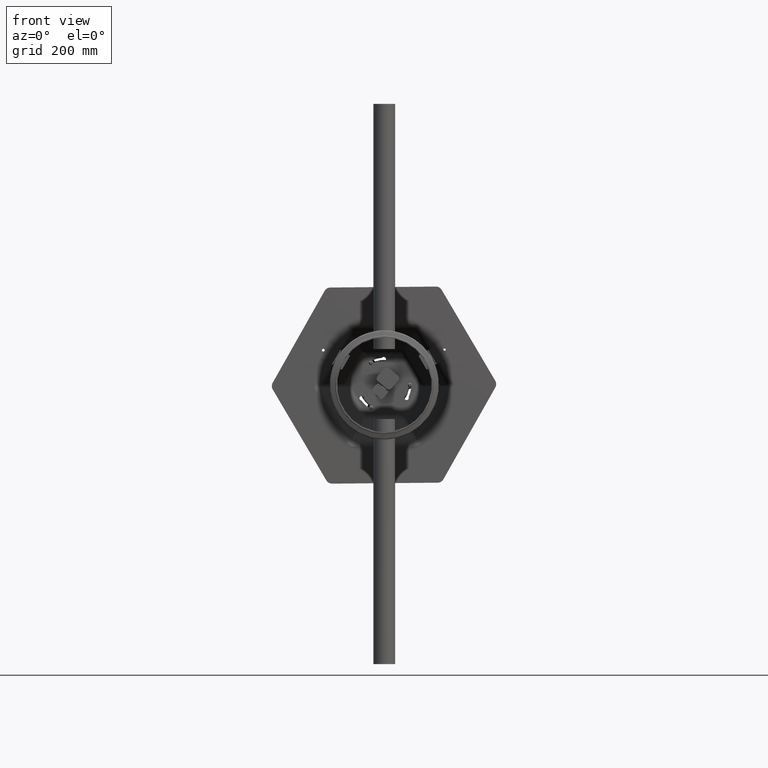
[diagram: clean part render]
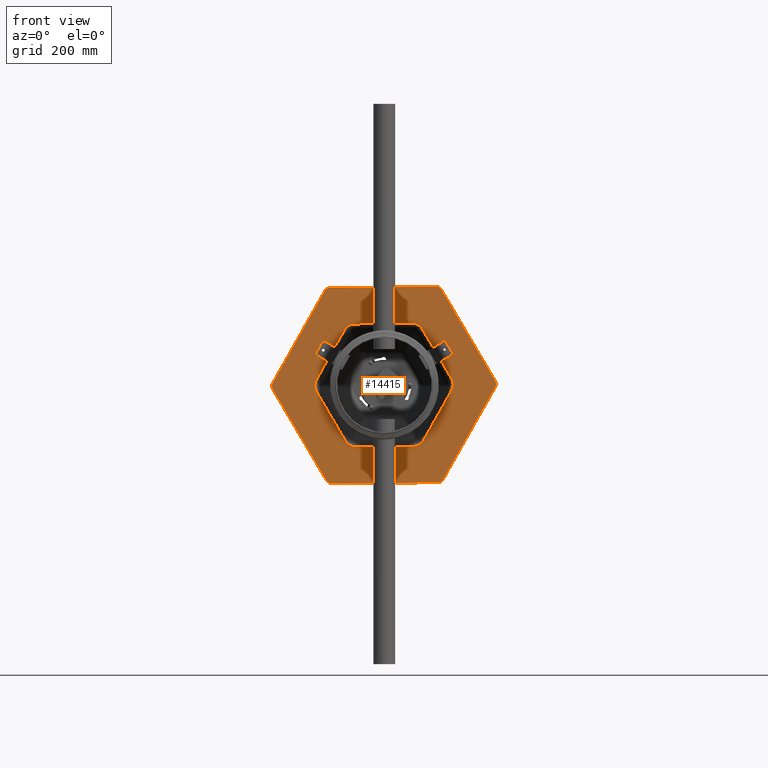
[diagram: same view with one face highlighted and labeled with its STEP entity id]
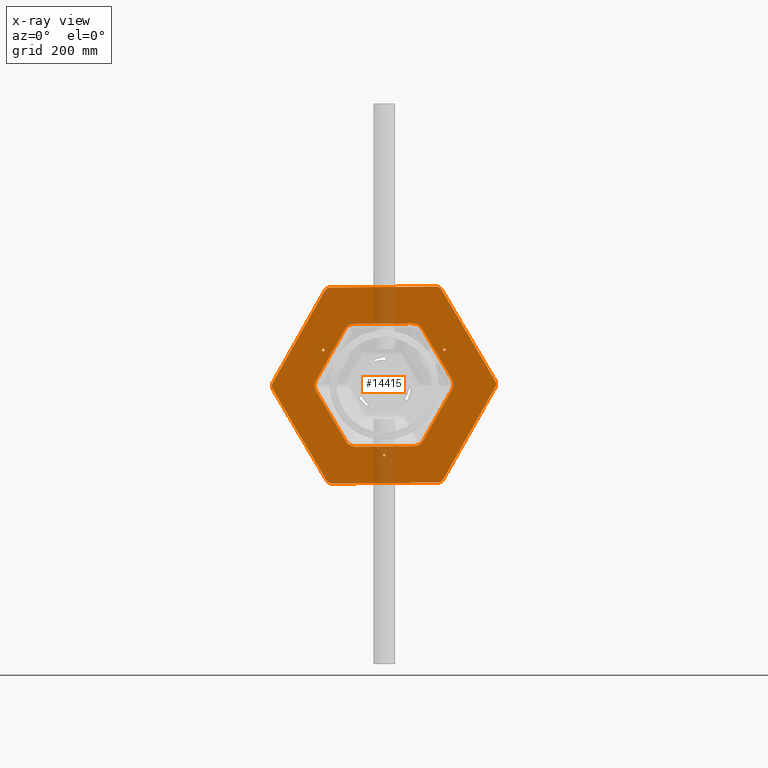
[diagram: x-ray of the same camera — body ghosted, the highlighted face saturated]
A machine part, front view. The second image highlights one B-rep face of the part: STEP entity #14415.
The next image is the same camera in x-ray: the body ghosted, the highlighted face saturated — about 8% of this face is hidden behind the body in this view.
In plain terms, the highlighted planar face has unit normal (-0, 1, 0).
Its self-contained STEP definition (entity closure, byte-faithful):
#186 = CARTESIAN_POINT ( 'NONE',  ( -10.57531631285923979, -124.1548265256772225, 2.220446049250313081E-13 ) ) ;
#203 = CARTESIAN_POINT ( 'NONE',  ( 108.9685932156030219, -67.34744161942877838, -6.240216072077553448E-29 ) ) ;
#506 = CARTESIAN_POINT ( 'NONE',  ( -108.9685932156029793, 67.34744161942867891, 6.605715013801087453E-29 ) ) ;
#890 = AXIS2_PLACEMENT_3D ( 'NONE', #34918, #13504, #38505 ) ;
#1071 = ORIENTED_EDGE ( 'NONE', *, *, #35603, .T. ) ;
#1286 = EDGE_CURVE ( 'NONE', #25062, #9273, #42304, .T. ) ;
#1314 = CARTESIAN_POINT ( 'NONE',  ( 5.999999999999950262, -204.3819952931275168, 0.0000000000000000000 ) ) ;
#1378 = CARTESIAN_POINT ( 'NONE',  ( 6.000000000000005329, 204.3819952931275168, 0.0000000000000000000 ) ) ;
#1386 = VERTEX_POINT ( 'NONE', #44862 ) ;
#1390 = ORIENTED_EDGE ( 'NONE', *, *, #26657, .T. ) ;
#1637 = CARTESIAN_POINT ( 'NONE',  ( 180.0000000000000000, -103.9230484541326973, 2.220446049250313081E-13 ) ) ;
#1640 = ORIENTED_EDGE ( 'NONE', *, *, #6826, .F. ) ;
#1879 = DIRECTION ( 'NONE',  ( 2.563797941968288368E-30, 3.944304526105059027E-31, -1.000000000000000000 ) ) ;
#1901 = LINE ( 'NONE', #39063, #10270 ) ;
#1973 = CARTESIAN_POINT ( 'NONE',  ( 102.2335756172567898, 71.23590584283078897, 0.0000000000000000000 ) ) ;
#1988 = AXIS2_PLACEMENT_3D ( 'NONE', #12129, #37157, #15721 ) ;
#2109 = EDGE_CURVE ( 'NONE', #45054, #25062, #11098, .T. ) ;
#2113 = DIRECTION ( 'NONE',  ( 4.440892098500626162E-16, -1.000000000000000000, 3.944304526105059027E-31 ) ) ;
#2136 = DIRECTION ( 'NONE',  ( 2.563797941968288368E-30, 3.944304526105059027E-31, -1.000000000000000000 ) ) ;
#2733 = VERTEX_POINT ( 'NONE', #41937 ) ;
#2790 = AXIS2_PLACEMENT_3D ( 'NONE', #38264, #16810, #41867 ) ;
#3108 = CIRCLE ( 'NONE', #19731, 12.00000000000001066 ) ;
#3399 = EDGE_CURVE ( 'NONE', #13277, #9923, #19245, .T. ) ;
#3506 = VERTEX_POINT ( 'NONE', #41347 ) ;
#3522 = CARTESIAN_POINT ( 'NONE',  ( -6.000000000000005329, 204.3819952931275168, 0.0000000000000000000 ) ) ;
#4045 = VECTOR ( 'NONE', #12402, 1000.000000000000000 ) ;
#4086 = CARTESIAN_POINT ( 'NONE',  ( 10.57531631285926821, 124.1548265256772225, 0.0000000000000000000 ) ) ;
#4103 = CARTESIAN_POINT ( 'NONE',  ( -112.8088919301161184, 52.91892068284648332, 0.0000000000000000000 ) ) ;
#4182 = ORIENTED_EDGE ( 'NONE', *, *, #41585, .T. ) ;
#4281 = LINE ( 'NONE', #4703, #40124 ) ;
#4584 = ORIENTED_EDGE ( 'NONE', *, *, #2109, .T. ) ;
#4703 = CARTESIAN_POINT ( 'NONE',  ( 112.8088919301159763, 1.110223024625156540E-13, 2.220446049250313081E-13 ) ) ;
#4885 = EDGE_CURVE ( 'NONE', #11067, #24044, #13093, .T. ) ;
#5073 = VERTEX_POINT ( 'NONE', #9171 ) ;
#5778 = EDGE_LOOP ( 'NONE', ( #41142, #7162 ) ) ;
#5872 = DIRECTION ( 'NONE',  ( 2.563797941968288368E-30, 3.944304526105059027E-31, -1.000000000000000000 ) ) ;
#6488 = CIRCLE ( 'NONE', #35121, 2.499999999999919176 ) ;
#6621 = CARTESIAN_POINT ( 'NONE',  ( -112.8088919301160757, -60.69584912965054713, 2.220446049250313586E-13 ) ) ;
#6816 = DIRECTION ( 'NONE',  ( 0.8660254037844387076, -0.4999999999999998335, -2.308034445353663446E-30 ) ) ;
#6826 = EDGE_CURVE ( 'NONE', #33471, #46403, #42288, .T. ) ;
#6858 = CARTESIAN_POINT ( 'NONE',  ( -112.8088919301161184, 52.91892068284648332, 0.0000000000000000000 ) ) ;
#6963 = CARTESIAN_POINT ( 'NONE',  ( 64.49258023428311049, -110.8974878807650271, 0.0000000000000000000 ) ) ;
#7162 = ORIENTED_EDGE ( 'NONE', *, *, #28654, .F. ) ;
#7355 = CARTESIAN_POINT ( 'NONE',  ( 10.57531631285918472, -124.1548265256772225, 0.0000000000000000000 ) ) ;
#8018 = CARTESIAN_POINT ( 'NONE',  ( 64.49258023428311049, -110.8974878807650271, 0.0000000000000000000 ) ) ;
#8452 = EDGE_CURVE ( 'NONE', #17626, #32310, #1901, .T. ) ;
#8534 = DIRECTION ( 'NONE',  ( 0.8660254037844385966, -0.4999999999999999445, -2.391234618951192385E-30 ) ) ;
#8638 = ORIENTED_EDGE ( 'NONE', *, *, #45443, .T. ) ;
#8715 = LINE ( 'NONE', #46287, #26587 ) ;
#8801 = ORIENTED_EDGE ( 'NONE', *, *, #1286, .T. ) ;
#8850 = CIRCLE ( 'NONE', #27512, 2.499999999999925837 ) ;
#9171 = CARTESIAN_POINT ( 'NONE',  ( 66.99258023428305364, -110.8974878807650271, 6.355568816477867105E-30 ) ) ;
#9186 = ORIENTED_EDGE ( 'NONE', *, *, #20417, .F. ) ;
#9199 = EDGE_CURVE ( 'NONE', #43872, #14733, #23094, .T. ) ;
#9273 = VERTEX_POINT ( 'NONE', #41520 ) ;
#9292 = CARTESIAN_POINT ( 'NONE',  ( -112.8088919301161184, -1.110223024625156540E-13, 0.0000000000000000000 ) ) ;
#9422 = CARTESIAN_POINT ( 'NONE',  ( 66.19974159824982962, 111.8859771665176055, 6.355568816478028254E-30 ) ) ;
#9923 = VERTEX_POINT ( 'NONE', #31487 ) ;
#10134 = CARTESIAN_POINT ( 'NONE',  ( -180.0000000000000284, 96.99484522385698426, 0.0000000000000000000 ) ) ;
#10208 = VERTEX_POINT ( 'NONE', #37102 ) ;
#10230 = CARTESIAN_POINT ( 'NONE',  ( -108.9685932156029367, -67.34744161942877838, 2.220446049250313586E-13 ) ) ;
#10270 = VECTOR ( 'NONE', #13754, 999.9999999999998863 ) ;
#10497 = CARTESIAN_POINT ( 'NONE',  ( 61.99258023428318864, -110.8974878807650271, 7.888609052209892445E-30 ) ) ;
#10544 = DIRECTION ( 'NONE',  ( -1.000000000000000000, 0.0000000000000000000, 3.155443620884050725E-30 ) ) ;
#11067 = VERTEX_POINT ( 'NONE', #21558 ) ;
#11069 = DIRECTION ( 'NONE',  ( 2.563797941968288368E-30, 3.944304526105059027E-31, -1.000000000000000000 ) ) ;
#11093 = CARTESIAN_POINT ( 'NONE',  ( 3.840298714513144418, 128.0432907490792047, 2.220446049250313081E-13 ) ) ;
#11098 =( BOUNDED_CURVE ( )  B_SPLINE_CURVE ( 3, ( #25512, #506, #21966, #4103 ),
 .UNSPECIFIED., .F., .F. ) 
 B_SPLINE_CURVE_WITH_KNOTS ( ( 4, 4 ),
 ( 2.640144173555560414, 3.643041133624027594 ),
 .UNSPECIFIED. ) 
 CURVE ( )  GEOMETRIC_REPRESENTATION_ITEM ( )  RATIONAL_B_SPLINE_CURVE ( ( 1.000000000000000000, 0.9179248021248419542, 0.9179248021248419542, 1.000000000000000000 ) ) 
 REPRESENTATION_ITEM ( '' )  );
#11577 = VECTOR ( 'NONE', #8534, 1000.000000000000114 ) ;
#11581 = DIRECTION ( 'NONE',  ( -1.000000000000000000, 0.0000000000000000000, 3.155443620884050725E-30 ) ) ;
#11810 = FACE_OUTER_BOUND ( 'NONE', #22897, .T. ) ;
#11889 = DIRECTION ( 'NONE',  ( -9.436895709313830594E-16, 1.000000000000000000, -3.944304526105059027E-31 ) ) ;
#12129 = CARTESIAN_POINT ( 'NONE',  ( -5.551115123125782702E-14, -193.9896904477143096, 2.220446049250313081E-13 ) ) ;
#12170 = CIRCLE ( 'NONE', #21863, 2.499999999999919176 ) ;
#12386 = ORIENTED_EDGE ( 'NONE', *, *, #9199, .F. ) ;
#12402 = DIRECTION ( 'NONE',  ( 0.0000000000000000000, -1.000000000000000000, 3.944304526105059903E-31 ) ) ;
#12628 = VECTOR ( 'NONE', #2113, 1000.000000000000000 ) ;
#12713 = CIRCLE ( 'NONE', #18640, 12.00000000000001066 ) ;
#13093 =( BOUNDED_CURVE ( )  B_SPLINE_CURVE ( 3, ( #4086, #11093, #18304, #29064 ),
 .UNSPECIFIED., .F., .F. ) 
 B_SPLINE_CURVE_WITH_KNOTS ( ( 4, 4 ),
 ( 2.640144173555560414, 3.643041133624027150 ),
 .UNSPECIFIED. ) 
 CURVE ( )  GEOMETRIC_REPRESENTATION_ITEM ( )  RATIONAL_B_SPLINE_CURVE ( ( 1.000000000000000000, 0.9179248021248420653, 0.9179248021248420653, 1.000000000000000000 ) ) 
 REPRESENTATION_ITEM ( '' )  );
#13229 = AXIS2_PLACEMENT_3D ( 'NONE', #36483, #15061, #40109 ) ;
#13277 = VERTEX_POINT ( 'NONE', #1314 ) ;
#13372 = VERTEX_POINT ( 'NONE', #28136 ) ;
#13500 = AXIS2_PLACEMENT_3D ( 'NONE', #32528, #11069, #36106 ) ;
#13504 = DIRECTION ( 'NONE',  ( 2.563797941968288368E-30, 3.944304526105059027E-31, -1.000000000000000000 ) ) ;
#13754 = DIRECTION ( 'NONE',  ( -0.8660254037844385966, -0.5000000000000002220, 2.169367489357782465E-30 ) ) ;
#14274 = VECTOR ( 'NONE', #34848, 1000.000000000000114 ) ;
#14415 = ADVANCED_FACE ( 'NONE', ( #30851, #39236, #21352, #41525, #11810 ), #20281, .F. ) ;
#14733 = VERTEX_POINT ( 'NONE', #27887 ) ;
#14940 = CIRCLE ( 'NONE', #33323, 2.499999999999925837 ) ;
#15061 = DIRECTION ( 'NONE',  ( 2.563797941968288368E-30, 3.944304526105059027E-31, -1.000000000000000000 ) ) ;
#15380 = LINE ( 'NONE', #38443, #14274 ) ;
#15509 = DIRECTION ( 'NONE',  ( 0.8660254037844385966, 0.5000000000000000000, -1.774937036747276562E-30 ) ) ;
#15514 = DIRECTION ( 'NONE',  ( -0.8660254037844388186, -0.4999999999999996669, 2.761013168273541319E-30 ) ) ;
#15721 = DIRECTION ( 'NONE',  ( 1.000000000000000000, 4.625929269271486900E-15, -4.108650548026104321E-30 ) ) ;
#16180 = CARTESIAN_POINT ( 'NONE',  ( 112.8088919301160473, 60.69584912965056134, 2.220446049250312324E-13 ) ) ;
#16421 = VERTEX_POINT ( 'NONE', #21411 ) ;
#16591 = EDGE_CURVE ( 'NONE', #1386, #35790, #21113, .T. ) ;
#16594 = CARTESIAN_POINT ( 'NONE',  ( -174.0000000000000568, 107.3871500692702483, 2.220446049250313081E-13 ) ) ;
#16630 = DIRECTION ( 'NONE',  ( 2.563797941968288368E-30, 3.944304526105059027E-31, -1.000000000000000000 ) ) ;
#16810 = DIRECTION ( 'NONE',  ( 3.155443620884047922E-30, -3.944304526105059027E-31, 1.000000000000000000 ) ) ;
#16909 = AXIS2_PLACEMENT_3D ( 'NONE', #38081, #16630, #41710 ) ;
#17306 = CARTESIAN_POINT ( 'NONE',  ( -6.000000000000116351, -204.3819952931275168, 2.220446049250313081E-13 ) ) ;
#17521 = DIRECTION ( 'NONE',  ( 2.563797941968288368E-30, 3.944304526105059027E-31, -1.000000000000000000 ) ) ;
#17626 = VERTEX_POINT ( 'NONE', #3522 ) ;
#17873 = ORIENTED_EDGE ( 'NONE', *, *, #3399, .F. ) ;
#18091 = EDGE_CURVE ( 'NONE', #25163, #9923, #3108, .T. ) ;
#18107 = VECTOR ( 'NONE', #15509, 1000.000000000000227 ) ;
#18166 = CARTESIAN_POINT ( 'NONE',  ( 112.8088919301161468, -60.69584912965054713, -4.993282014363931459E-29 ) ) ;
#18191 = EDGE_CURVE ( 'NONE', #10208, #38001, #42984, .T. ) ;
#18304 = CARTESIAN_POINT ( 'NONE',  ( -3.840298714513111111, 128.0432907490792047, 2.220446049250313081E-13 ) ) ;
#18640 = AXIS2_PLACEMENT_3D ( 'NONE', #23317, #1879, #26850 ) ;
#19245 = LINE ( 'NONE', #36941, #18107 ) ;
#19731 = AXIS2_PLACEMENT_3D ( 'NONE', #38954, #17521, #42590 ) ;
#19777 =( BOUNDED_CURVE ( )  B_SPLINE_CURVE ( 3, ( #35985, #203, #18166, #43213 ),
 .UNSPECIFIED., .F., .F. ) 
 B_SPLINE_CURVE_WITH_KNOTS ( ( 4, 4 ),
 ( 2.640144173555563079, 3.643041133624032035 ),
 .UNSPECIFIED. ) 
 CURVE ( )  GEOMETRIC_REPRESENTATION_ITEM ( )  RATIONAL_B_SPLINE_CURVE ( ( 1.000000000000000000, 0.9179248021248416212, 0.9179248021248416212, 1.000000000000000000 ) ) 
 REPRESENTATION_ITEM ( '' )  );
#19839 = VERTEX_POINT ( 'NONE', #10497 ) ;
#20015 = EDGE_CURVE ( 'NONE', #19839, #5073, #14940, .T. ) ;
#20281 = PLANE ( 'NONE',  #2790 ) ;
#20284 = LINE ( 'NONE', #36946, #38204 ) ;
#20417 = EDGE_CURVE ( 'NONE', #2733, #42828, #8715, .T. ) ;
#20468 = EDGE_LOOP ( 'NONE', ( #8638, #33386, #30137, #41505, #4182, #39759, #37235, #30495, #40861, #4584, #8801, #34668 ) ) ;
#20958 = DIRECTION ( 'NONE',  ( 2.563797941968288368E-30, 3.944304526105059027E-31, -1.000000000000000000 ) ) ;
#20974 = VECTOR ( 'NONE', #26627, 1000.000000000000000 ) ;
#21018 = ORIENTED_EDGE ( 'NONE', *, *, #18091, .T. ) ;
#21044 = EDGE_CURVE ( 'NONE', #25163, #42662, #22135, .T. ) ;
#21113 = LINE ( 'NONE', #29947, #11577 ) ;
#21265 = VERTEX_POINT ( 'NONE', #45725 ) ;
#21352 = FACE_BOUND ( 'NONE', #27385, .T. ) ;
#21398 = AXIS2_PLACEMENT_3D ( 'NONE', #42414, #20958, #45992 ) ;
#21411 = CARTESIAN_POINT ( 'NONE',  ( 112.8088919301160615, -52.91892068284654016, 2.220446049250313081E-13 ) ) ;
#21466 = CARTESIAN_POINT ( 'NONE',  ( 61.19974159824980120, 111.8859771665176055, 7.888609052210181113E-30 ) ) ;
#21558 = CARTESIAN_POINT ( 'NONE',  ( 10.57531631285926821, 124.1548265256772225, 0.0000000000000000000 ) ) ;
#21587 = ORIENTED_EDGE ( 'NONE', *, *, #22904, .F. ) ;
#21629 = CARTESIAN_POINT ( 'NONE',  ( -3.840298714513142642, -128.0432907490792331, 2.220446049250313081E-13 ) ) ;
#21704 = CARTESIAN_POINT ( 'NONE',  ( -131.0606159927931458, -0.9905632959438248619, 7.888609052209827985E-30 ) ) ;
#21863 = AXIS2_PLACEMENT_3D ( 'NONE', #23581, #2136, #27121 ) ;
#21885 = EDGE_CURVE ( 'NONE', #43872, #32310, #41070, .T. ) ;
#21966 = CARTESIAN_POINT ( 'NONE',  ( -112.8088919301161468, 60.69584912965049739, 5.358780956087478356E-29 ) ) ;
#22135 = LINE ( 'NONE', #1637, #20974 ) ;
#22240 = ORIENTED_EDGE ( 'NONE', *, *, #16591, .F. ) ;
#22897 = EDGE_LOOP ( 'NONE', ( #27391, #34626, #9186, #1390, #43596, #21018, #17873, #33313, #22240, #1071, #12386, #23685 ) ) ;
#22904 = EDGE_CURVE ( 'NONE', #46403, #33471, #44875, .T. ) ;
#22911 = CARTESIAN_POINT ( 'NONE',  ( -102.2335756172567898, -71.23590584283078897, 2.220446049250313081E-13 ) ) ;
#23094 = LINE ( 'NONE', #33829, #4045 ) ;
#23317 = CARTESIAN_POINT ( 'NONE',  ( -167.9999999999999716, -96.99484522385715479, 0.0000000000000000000 ) ) ;
#23414 = CARTESIAN_POINT ( 'NONE',  ( 108.9685932156029367, 67.34744161942877838, 2.220446049250312324E-13 ) ) ;
#23581 = CARTESIAN_POINT ( 'NONE',  ( -128.5606159927932310, -0.9905632959438248619, 0.0000000000000000000 ) ) ;
#23685 = ORIENTED_EDGE ( 'NONE', *, *, #21885, .T. ) ;
#23973 = CIRCLE ( 'NONE', #13229, 11.99999999999999645 ) ;
#24044 = VERTEX_POINT ( 'NONE', #30947 ) ;
#24437 = EDGE_CURVE ( 'NONE', #13277, #35790, #40836, .T. ) ;
#24678 = CARTESIAN_POINT ( 'NONE',  ( 180.0000000000001137, 96.99484522385698426, 0.0000000000000000000 ) ) ;
#25062 = VERTEX_POINT ( 'NONE', #6858 ) ;
#25163 = VERTEX_POINT ( 'NONE', #25457 ) ;
#25416 = DIRECTION ( 'NONE',  ( 0.8660254037844387076, 0.4999999999999998890, -2.366582715663035416E-30 ) ) ;
#25457 = CARTESIAN_POINT ( 'NONE',  ( 180.0000000000000000, -96.99484522385726848, 2.220446049250313081E-13 ) ) ;
#25512 = CARTESIAN_POINT ( 'NONE',  ( -102.2335756172568750, 71.23590584283067528, 2.220446049250313081E-13 ) ) ;
#25620 = EDGE_CURVE ( 'NONE', #5073, #19839, #8850, .T. ) ;
#26587 = VECTOR ( 'NONE', #38929, 1000.000000000000227 ) ;
#26627 = DIRECTION ( 'NONE',  ( 0.0000000000000000000, 1.000000000000000000, -3.944304526105059903E-31 ) ) ;
#26657 = EDGE_CURVE ( 'NONE', #2733, #42662, #40286, .T. ) ;
#26850 = DIRECTION ( 'NONE',  ( 1.000000000000000000, -2.312964634635740689E-15, -3.155443620884045470E-30 ) ) ;
#27121 = DIRECTION ( 'NONE',  ( -1.000000000000000000, 0.0000000000000000000, 3.155443620884033209E-30 ) ) ;
#27250 = CARTESIAN_POINT ( 'NONE',  ( -128.5606159927932310, -0.9905632959438248619, 0.0000000000000000000 ) ) ;
#27262 = CARTESIAN_POINT ( 'NONE',  ( 102.2335756172569035, -71.23590584283078897, 2.220446049250313081E-13 ) ) ;
#27379 = LINE ( 'NONE', #39662, #45329 ) ;
#27385 = EDGE_LOOP ( 'NONE', ( #21587, #1640 ) ) ;
#27391 = ORIENTED_EDGE ( 'NONE', *, *, #8452, .F. ) ;
#27488 = EDGE_CURVE ( 'NONE', #17626, #42828, #23973, .T. ) ;
#27512 = AXIS2_PLACEMENT_3D ( 'NONE', #6963, #32003, #10544 ) ;
#27887 = CARTESIAN_POINT ( 'NONE',  ( -180.0000000000000284, -96.99484522385715479, 0.0000000000000000000 ) ) ;
#28136 = CARTESIAN_POINT ( 'NONE',  ( -126.0606159927933021, -0.9905632959439356622, 6.355568816477990419E-30 ) ) ;
#28209 = CARTESIAN_POINT ( 'NONE',  ( -56.40444596505797392, -97.69536618425401286, 0.0000000000000000000 ) ) ;
#28654 = EDGE_CURVE ( 'NONE', #13372, #34717, #6488, .T. ) ;
#28753 = CARTESIAN_POINT ( 'NONE',  ( 3.840298714513089351, -128.0432907490792331, 2.220446049250314091E-13 ) ) ;
#29064 = CARTESIAN_POINT ( 'NONE',  ( -10.57531631285918472, 124.1548265256771089, 2.220446049250313081E-13 ) ) ;
#29947 = CARTESIAN_POINT ( 'NONE',  ( -180.0000000000001137, -103.9230484541326973, 0.0000000000000000000 ) ) ;
#30098 = EDGE_CURVE ( 'NONE', #9273, #43310, #33801, .T. ) ;
#30137 = ORIENTED_EDGE ( 'NONE', *, *, #45588, .T. ) ;
#30495 = ORIENTED_EDGE ( 'NONE', *, *, #4885, .T. ) ;
#30851 = FACE_BOUND ( 'NONE', #38221, .T. ) ;
#30902 = DIRECTION ( 'NONE',  ( -1.000000000000000000, 0.0000000000000000000, 3.155443620884033209E-30 ) ) ;
#30947 = CARTESIAN_POINT ( 'NONE',  ( -10.57531631285918472, 124.1548265256771089, 2.220446049250313081E-13 ) ) ;
#31487 = CARTESIAN_POINT ( 'NONE',  ( 174.0000000000000853, -107.3871500692703478, 0.0000000000000000000 ) ) ;
#32003 = DIRECTION ( 'NONE',  ( 2.563797941968288368E-30, 3.944304526105059027E-31, -1.000000000000000000 ) ) ;
#32310 = VERTEX_POINT ( 'NONE', #16594 ) ;
#32528 = CARTESIAN_POINT ( 'NONE',  ( 167.9999999999999716, 96.99484522385698426, 4.440892098500626162E-13 ) ) ;
#32691 = CARTESIAN_POINT ( 'NONE',  ( -102.2335756172568750, 71.23590584283067528, 2.220446049250313081E-13 ) ) ;
#33043 = DIRECTION ( 'NONE',  ( 2.563797941968288368E-30, 3.944304526105059027E-31, -1.000000000000000000 ) ) ;
#33241 =( BOUNDED_CURVE ( )  B_SPLINE_CURVE ( 3, ( #41265, #16180, #23414, #1973 ),
 .UNSPECIFIED., .F., .F. ) 
 B_SPLINE_CURVE_WITH_KNOTS ( ( 4, 4 ),
 ( 2.640144173555554197, 3.643041133624022709 ),
 .UNSPECIFIED. ) 
 CURVE ( )  GEOMETRIC_REPRESENTATION_ITEM ( )  RATIONAL_B_SPLINE_CURVE ( ( 1.000000000000000000, 0.9179248021248418432, 0.9179248021248418432, 1.000000000000000000 ) ) 
 REPRESENTATION_ITEM ( '' )  );
#33313 = ORIENTED_EDGE ( 'NONE', *, *, #24437, .T. ) ;
#33323 = AXIS2_PLACEMENT_3D ( 'NONE', #8018, #33043, #11581 ) ;
#33386 = ORIENTED_EDGE ( 'NONE', *, *, #18191, .T. ) ;
#33471 = VERTEX_POINT ( 'NONE', #9422 ) ;
#33801 =( BOUNDED_CURVE ( )  B_SPLINE_CURVE ( 3, ( #42324, #6621, #10230, #35247 ),
 .UNSPECIFIED., .F., .F. ) 
 B_SPLINE_CURVE_WITH_KNOTS ( ( 4, 4 ),
 ( 2.640144173555555085, 3.643041133624024042 ),
 .UNSPECIFIED. ) 
 CURVE ( )  GEOMETRIC_REPRESENTATION_ITEM ( )  RATIONAL_B_SPLINE_CURVE ( ( 1.000000000000000000, 0.9179248021248416212, 0.9179248021248416212, 1.000000000000000000 ) ) 
 REPRESENTATION_ITEM ( '' )  );
#33829 = CARTESIAN_POINT ( 'NONE',  ( -180.0000000000000284, 103.9230484541324699, 0.0000000000000000000 ) ) ;
#34626 = ORIENTED_EDGE ( 'NONE', *, *, #27488, .T. ) ;
#34668 = ORIENTED_EDGE ( 'NONE', *, *, #30098, .T. ) ;
#34717 = VERTEX_POINT ( 'NONE', #21704 ) ;
#34848 = DIRECTION ( 'NONE',  ( -0.8660254037844387076, 0.4999999999999997224, 1.725633230170962974E-30 ) ) ;
#34918 = CARTESIAN_POINT ( 'NONE',  ( 63.69974159824981541, 111.8859771665176055, 0.0000000000000000000 ) ) ;
#35121 = AXIS2_PLACEMENT_3D ( 'NONE', #27250, #5872, #30902 ) ;
#35247 = CARTESIAN_POINT ( 'NONE',  ( -102.2335756172567898, -71.23590584283078897, 2.220446049250313081E-13 ) ) ;
#35603 = EDGE_CURVE ( 'NONE', #1386, #14733, #12713, .T. ) ;
#35790 = VERTEX_POINT ( 'NONE', #17306 ) ;
#35985 = CARTESIAN_POINT ( 'NONE',  ( 102.2335756172569035, -71.23590584283078897, 2.220446049250313081E-13 ) ) ;
#36106 = DIRECTION ( 'NONE',  ( 1.000000000000000000, 3.469446951953611033E-15, -4.108650548026099416E-30 ) ) ;
#36189 = EDGE_CURVE ( 'NONE', #3506, #21265, #33241, .T. ) ;
#36424 = VECTOR ( 'NONE', #6816, 1000.000000000000000 ) ;
#36483 = CARTESIAN_POINT ( 'NONE',  ( 0.0000000000000000000, 193.9896904477141959, 0.0000000000000000000 ) ) ;
#36941 = CARTESIAN_POINT ( 'NONE',  ( -5.551115123125782702E-14, -207.8460969082652809, 2.220446049250313081E-13 ) ) ;
#36946 = CARTESIAN_POINT ( 'NONE',  ( -56.40444596505808761, 97.69536618425395602, 0.0000000000000000000 ) ) ;
#37102 = CARTESIAN_POINT ( 'NONE',  ( -10.57531631285923979, -124.1548265256772225, 2.220446049250313081E-13 ) ) ;
#37157 = DIRECTION ( 'NONE',  ( 2.563797941968288368E-30, 3.944304526105059027E-31, -1.000000000000000000 ) ) ;
#37235 = ORIENTED_EDGE ( 'NONE', *, *, #42598, .T. ) ;
#38001 = VERTEX_POINT ( 'NONE', #44560 ) ;
#38081 = CARTESIAN_POINT ( 'NONE',  ( 63.69974159824981541, 111.8859771665176055, 0.0000000000000000000 ) ) ;
#38204 = VECTOR ( 'NONE', #15514, 1000.000000000000000 ) ;
#38221 = EDGE_LOOP ( 'NONE', ( #45800, #40556 ) ) ;
#38264 = CARTESIAN_POINT ( 'NONE',  ( 0.0000000000000000000, 0.0000000000000000000, 0.0000000000000000000 ) ) ;
#38443 = CARTESIAN_POINT ( 'NONE',  ( 56.40444596505805919, 97.69536618425395602, 0.0000000000000000000 ) ) ;
#38505 = DIRECTION ( 'NONE',  ( -1.000000000000000000, 0.0000000000000000000, 3.155443620884052126E-30 ) ) ;
#38929 = DIRECTION ( 'NONE',  ( -0.8660254037844385966, 0.5000000000000000000, 3.075324935197538210E-30 ) ) ;
#38954 = CARTESIAN_POINT ( 'NONE',  ( 168.0000000000000853, -96.99484522385726848, 0.0000000000000000000 ) ) ;
#39063 = CARTESIAN_POINT ( 'NONE',  ( 6.938893903907228378E-14, 207.8460969082651673, 0.0000000000000000000 ) ) ;
#39236 = FACE_BOUND ( 'NONE', #5778, .T. ) ;
#39662 = CARTESIAN_POINT ( 'NONE',  ( 56.40444596505808761, -97.69536618425401286, 2.220446049250313081E-13 ) ) ;
#39759 = ORIENTED_EDGE ( 'NONE', *, *, #36189, .T. ) ;
#39995 = EDGE_CURVE ( 'NONE', #40868, #16421, #19777, .T. ) ;
#40109 = DIRECTION ( 'NONE',  ( 1.000000000000000000, -9.251858538542973800E-15, -3.155443620884052126E-30 ) ) ;
#40124 = VECTOR ( 'NONE', #11889, 1000.000000000000000 ) ;
#40286 = CIRCLE ( 'NONE', #13500, 12.00000000000001066 ) ;
#40556 = ORIENTED_EDGE ( 'NONE', *, *, #25620, .F. ) ;
#40784 = EDGE_CURVE ( 'NONE', #34717, #13372, #12170, .T. ) ;
#40836 = CIRCLE ( 'NONE', #1988, 11.99999999999999645 ) ;
#40861 = ORIENTED_EDGE ( 'NONE', *, *, #44607, .T. ) ;
#40868 = VERTEX_POINT ( 'NONE', #27262 ) ;
#41070 = CIRCLE ( 'NONE', #21398, 11.99999999999998224 ) ;
#41142 = ORIENTED_EDGE ( 'NONE', *, *, #40784, .F. ) ;
#41265 = CARTESIAN_POINT ( 'NONE',  ( 112.8088919301158626, 52.91892068284654016, 2.220446049250313081E-13 ) ) ;
#41347 = CARTESIAN_POINT ( 'NONE',  ( 112.8088919301158626, 52.91892068284654016, 2.220446049250313081E-13 ) ) ;
#41505 = ORIENTED_EDGE ( 'NONE', *, *, #39995, .T. ) ;
#41520 = CARTESIAN_POINT ( 'NONE',  ( -112.8088919301160900, -52.91892068284654016, 0.0000000000000000000 ) ) ;
#41525 = FACE_BOUND ( 'NONE', #20468, .T. ) ;
#41585 = EDGE_CURVE ( 'NONE', #16421, #3506, #4281, .T. ) ;
#41710 = DIRECTION ( 'NONE',  ( -1.000000000000000000, 0.0000000000000000000, 3.155443620884052126E-30 ) ) ;
#41867 = DIRECTION ( 'NONE',  ( 1.000000000000000000, 0.0000000000000000000, -3.155443620884047922E-30 ) ) ;
#41937 = CARTESIAN_POINT ( 'NONE',  ( 174.0000000000000568, 107.3871500692703478, 2.220446049250313081E-13 ) ) ;
#42288 = CIRCLE ( 'NONE', #890, 2.500000000000015987 ) ;
#42304 = LINE ( 'NONE', #9292, #12628 ) ;
#42324 = CARTESIAN_POINT ( 'NONE',  ( -112.8088919301160900, -52.91892068284654016, 0.0000000000000000000 ) ) ;
#42414 = CARTESIAN_POINT ( 'NONE',  ( -168.0000000000000000, 96.99484522385698426, 2.220446049250313081E-13 ) ) ;
#42590 = DIRECTION ( 'NONE',  ( 1.000000000000000000, 0.0000000000000000000, -3.155443620884044419E-30 ) ) ;
#42598 = EDGE_CURVE ( 'NONE', #21265, #11067, #15380, .T. ) ;
#42662 = VERTEX_POINT ( 'NONE', #24678 ) ;
#42828 = VERTEX_POINT ( 'NONE', #1378 ) ;
#42984 =( BOUNDED_CURVE ( )  B_SPLINE_CURVE ( 3, ( #186, #21629, #28753, #7355 ),
 .UNSPECIFIED., .F., .T. ) 
 B_SPLINE_CURVE_WITH_KNOTS ( ( 4, 4 ),
 ( 2.640144173555558638, 3.643041133624022265 ),
 .UNSPECIFIED. ) 
 CURVE ( )  GEOMETRIC_REPRESENTATION_ITEM ( )  RATIONAL_B_SPLINE_CURVE ( ( 1.000000000000000000, 0.9179248021248425093, 0.9179248021248425093, 1.000000000000000000 ) ) 
 REPRESENTATION_ITEM ( '' )  );
#43213 = CARTESIAN_POINT ( 'NONE',  ( 112.8088919301160615, -52.91892068284654016, 2.220446049250313081E-13 ) ) ;
#43310 = VERTEX_POINT ( 'NONE', #22911 ) ;
#43596 = ORIENTED_EDGE ( 'NONE', *, *, #21044, .F. ) ;
#43722 = LINE ( 'NONE', #28209, #36424 ) ;
#43872 = VERTEX_POINT ( 'NONE', #10134 ) ;
#44560 = CARTESIAN_POINT ( 'NONE',  ( 10.57531631285918472, -124.1548265256772225, 0.0000000000000000000 ) ) ;
#44607 = EDGE_CURVE ( 'NONE', #24044, #45054, #20284, .T. ) ;
#44862 = CARTESIAN_POINT ( 'NONE',  ( -173.9999999999999716, -107.3871500692704615, 0.0000000000000000000 ) ) ;
#44875 = CIRCLE ( 'NONE', #16909, 2.500000000000015987 ) ;
#45054 = VERTEX_POINT ( 'NONE', #32691 ) ;
#45329 = VECTOR ( 'NONE', #25416, 1000.000000000000000 ) ;
#45443 = EDGE_CURVE ( 'NONE', #43310, #10208, #43722, .T. ) ;
#45588 = EDGE_CURVE ( 'NONE', #38001, #40868, #27379, .T. ) ;
#45725 = CARTESIAN_POINT ( 'NONE',  ( 102.2335756172567898, 71.23590584283078897, 0.0000000000000000000 ) ) ;
#45800 = ORIENTED_EDGE ( 'NONE', *, *, #20015, .F. ) ;
#45992 = DIRECTION ( 'NONE',  ( 1.000000000000000000, 2.312964634635746211E-15, -4.108650548026109225E-30 ) ) ;
#46287 = CARTESIAN_POINT ( 'NONE',  ( 180.0000000000000568, 103.9230484541325836, 0.0000000000000000000 ) ) ;
#46403 = VERTEX_POINT ( 'NONE', #21466 ) ;